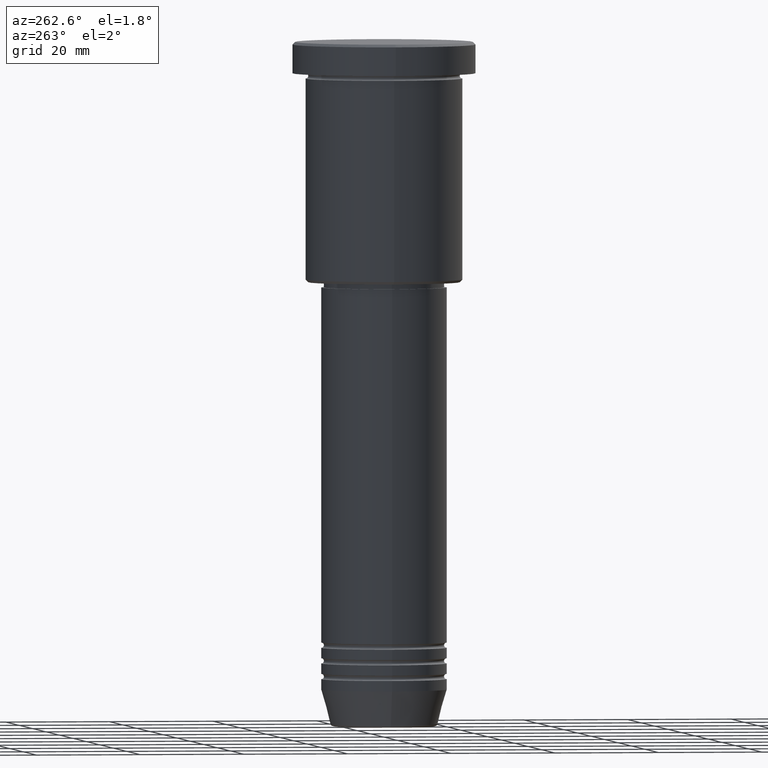
[diagram: clean part render]
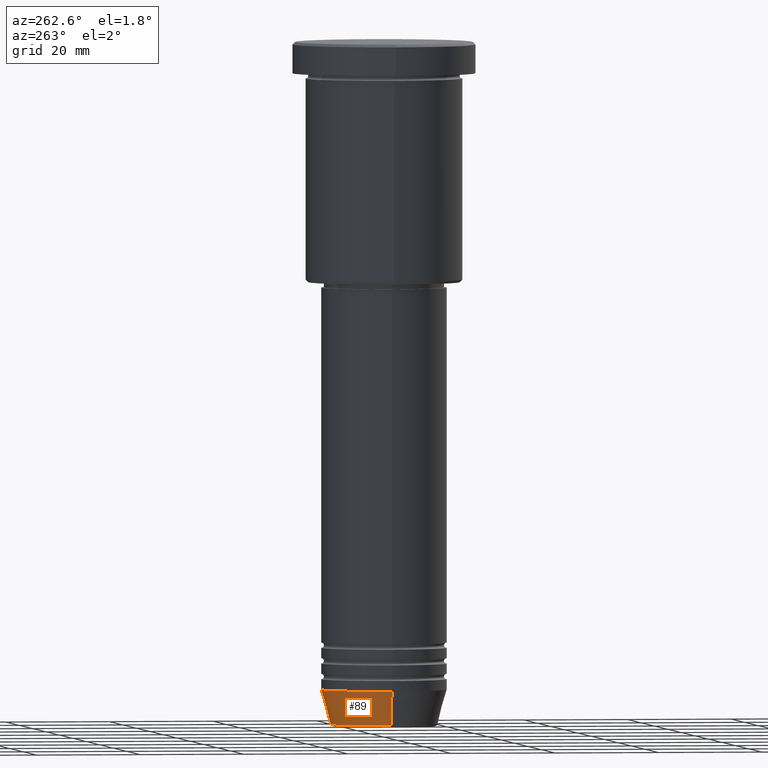
[diagram: same view with one face highlighted and labeled with its STEP entity id]
A machine part, auxiliary view. The second image highlights one B-rep face of the part: STEP entity #89.
In plain terms, the highlighted conical surface has half-angle 15 deg.
Its self-contained STEP definition (entity closure, byte-faithful):
#31 = DIRECTION ( 'NONE',  ( -0.000000000000000000, -0.000000000000000000, 1.000000000000000000 ) ) ;
#82 = CARTESIAN_POINT ( 'NONE',  ( 0.000000000000000000, 0.000000000000000000, -130.6294095225512422 ) ) ;
#89 = ADVANCED_FACE ( 'NONE', ( #399 ), #251, .T. ) ;
#157 = VERTEX_POINT ( 'NONE', #347 ) ;
#186 = VECTOR ( 'NONE', #715, 1000.000000000000000 ) ;
#201 = CARTESIAN_POINT ( 'NONE',  ( 0.000000000000000000, 0.000000000000000000, -124.0000000000000000 ) ) ;
#213 = CARTESIAN_POINT ( 'NONE',  ( 0.000000000000000000, 0.000000000000000000, -124.0000000000000000 ) ) ;
#238 = CARTESIAN_POINT ( 'NONE',  ( 10.22365507213718949, 0.000000000000000000, -130.6294095225512422 ) ) ;
#251 = CONICAL_SURFACE ( 'NONE', #644, 12.00000000000000000, 0.2617993877991500740 ) ;
#287 = CIRCLE ( 'NONE', #804, 12.00000000000000000 ) ;
#288 = ORIENTED_EDGE ( 'NONE', *, *, #634, .T. ) ;
#347 = CARTESIAN_POINT ( 'NONE',  ( -10.22365507213718949, 1.360806402472382744E-15, -130.6294095225512422 ) ) ;
#353 = VECTOR ( 'NONE', #1181, 1000.000000000000000 ) ;
#371 = DIRECTION ( 'NONE',  ( -0.000000000000000000, -0.000000000000000000, 1.000000000000000000 ) ) ;
#398 = VERTEX_POINT ( 'NONE', #502 ) ;
#399 = FACE_OUTER_BOUND ( 'NONE', #696, .T. ) ;
#416 = ORIENTED_EDGE ( 'NONE', *, *, #550, .T. ) ;
#502 = CARTESIAN_POINT ( 'NONE',  ( 12.00000000000000000, 0.000000000000000000, -124.0000000000000000 ) ) ;
#532 = DIRECTION ( 'NONE',  ( -0.000000000000000000, -0.000000000000000000, 1.000000000000000000 ) ) ;
#546 = LINE ( 'NONE', #1096, #353 ) ;
#550 = EDGE_CURVE ( 'NONE', #157, #1105, #721, .T. ) ;
#616 = EDGE_CURVE ( 'NONE', #398, #1105, #287, .T. ) ;
#634 = EDGE_CURVE ( 'NONE', #921, #157, #1051, .T. ) ;
#644 = AXIS2_PLACEMENT_3D ( 'NONE', #213, #31, #942 ) ;
#685 = ORIENTED_EDGE ( 'NONE', *, *, #966, .F. ) ;
#696 = EDGE_LOOP ( 'NONE', ( #288, #416, #1154, #685 ) ) ;
#715 = DIRECTION ( 'NONE',  ( -0.2588190451025213501, 3.169619151431772337E-17, 0.9659258262890680902 ) ) ;
#721 = LINE ( 'NONE', #734, #186 ) ;
#734 = CARTESIAN_POINT ( 'NONE',  ( -12.00000000000000000, 1.469576158976823947E-15, -124.0000000000000000 ) ) ;
#804 = AXIS2_PLACEMENT_3D ( 'NONE', #201, #532, #905 ) ;
#809 = DIRECTION ( 'NONE',  ( 1.000000000000000000, 0.000000000000000000, 0.000000000000000000 ) ) ;
#832 = AXIS2_PLACEMENT_3D ( 'NONE', #82, #371, #809 ) ;
#905 = DIRECTION ( 'NONE',  ( 1.000000000000000000, 0.000000000000000000, 0.000000000000000000 ) ) ;
#921 = VERTEX_POINT ( 'NONE', #238 ) ;
#942 = DIRECTION ( 'NONE',  ( 1.000000000000000000, 0.000000000000000000, 0.000000000000000000 ) ) ;
#966 = EDGE_CURVE ( 'NONE', #921, #398, #546, .T. ) ;
#1051 = CIRCLE ( 'NONE', #832, 10.22365507213718949 ) ;
#1096 = CARTESIAN_POINT ( 'NONE',  ( 12.00000000000000000, 0.000000000000000000, -124.0000000000000000 ) ) ;
#1105 = VERTEX_POINT ( 'NONE', #1120 ) ;
#1120 = CARTESIAN_POINT ( 'NONE',  ( -12.00000000000000000, 1.469576158976823947E-15, -124.0000000000000000 ) ) ;
#1154 = ORIENTED_EDGE ( 'NONE', *, *, #616, .F. ) ;
#1181 = DIRECTION ( 'NONE',  ( 0.2588190451025213501, 0.000000000000000000, 0.9659258262890680902 ) ) ;